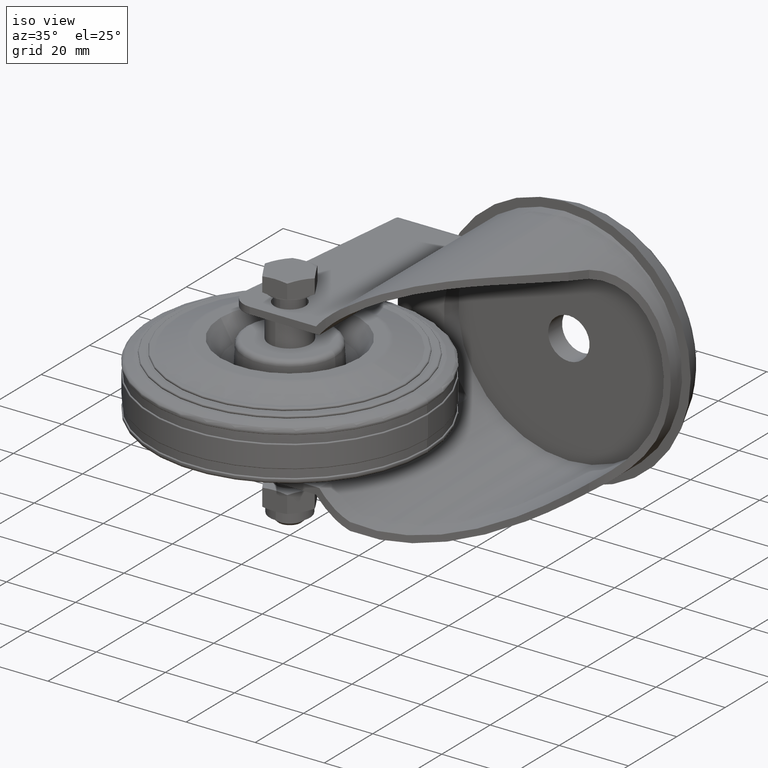
[diagram: clean part render]
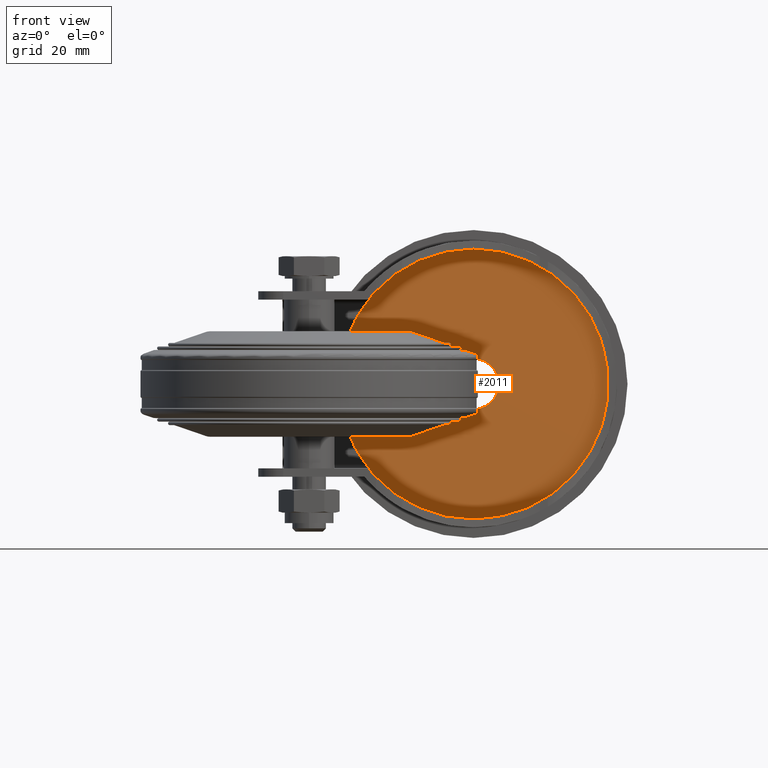
[diagram: tour spotlight — one face highlighted and labeled with its STEP entity id]
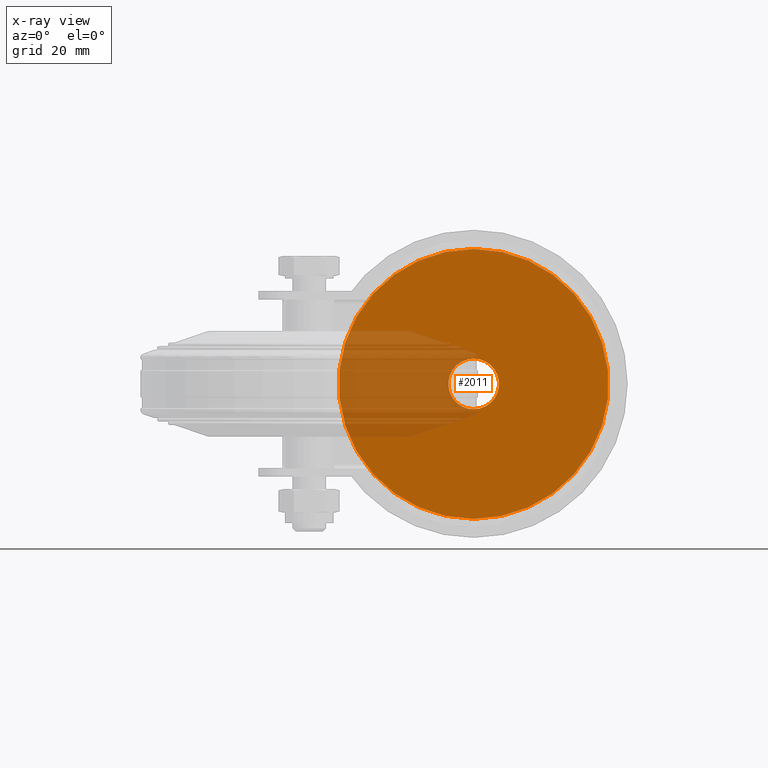
[diagram: x-ray of the same camera — body ghosted, this tour face saturated]
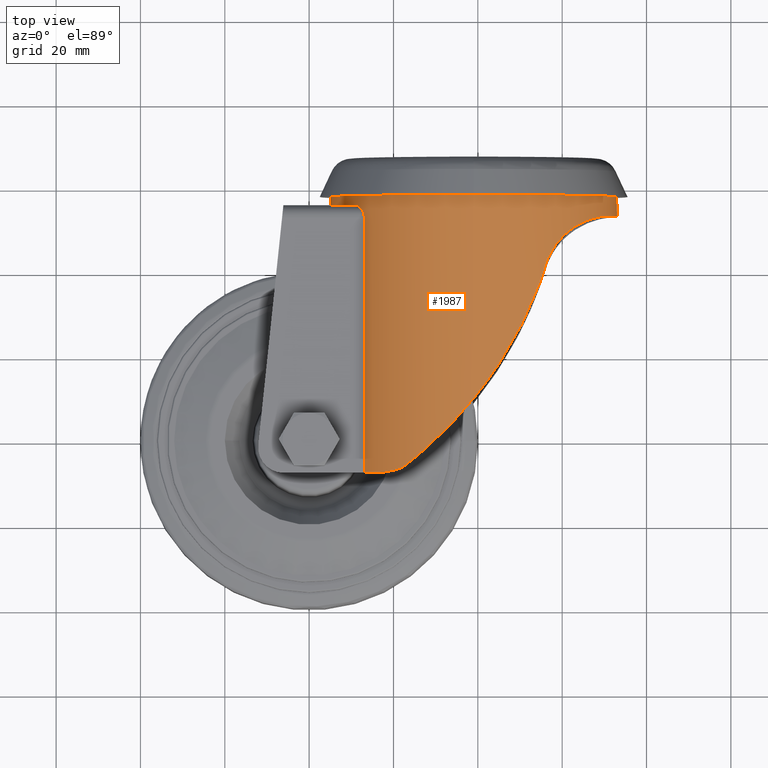
[diagram: tour spotlight — one face highlighted and labeled with its STEP entity id]
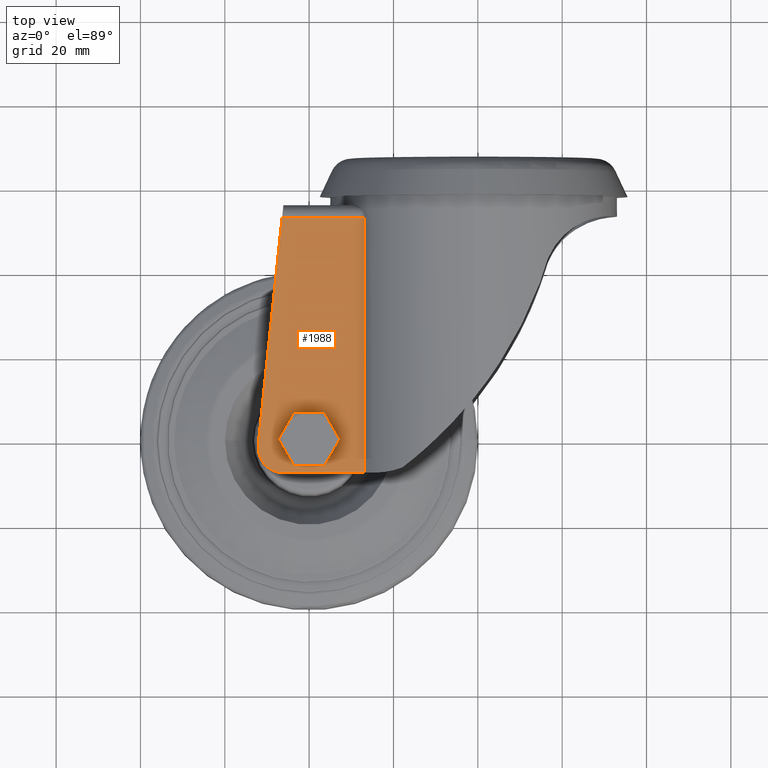
[diagram: tour spotlight — one face highlighted and labeled with its STEP entity id]
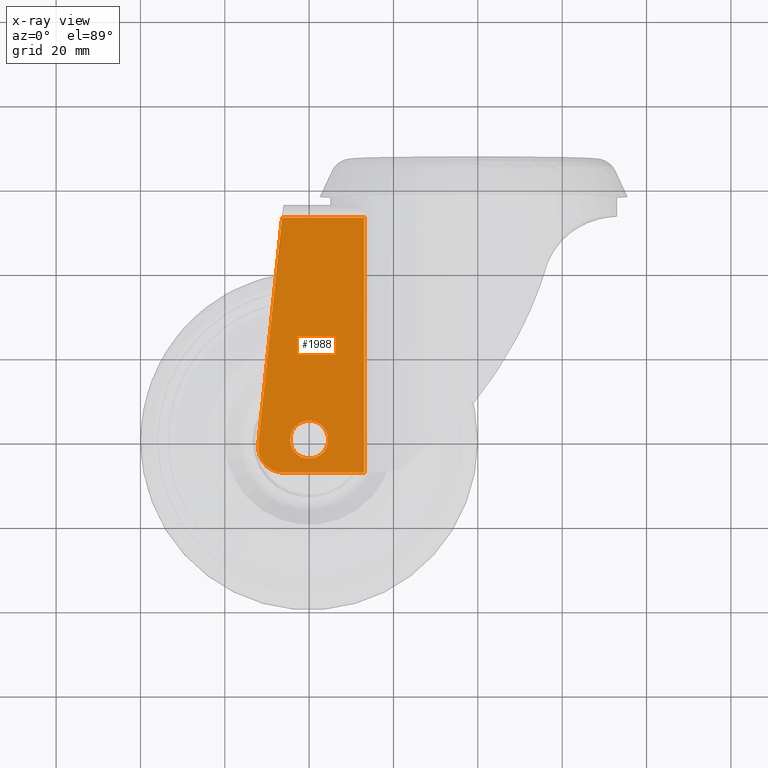
[diagram: x-ray of the same camera — body ghosted, this tour face saturated]
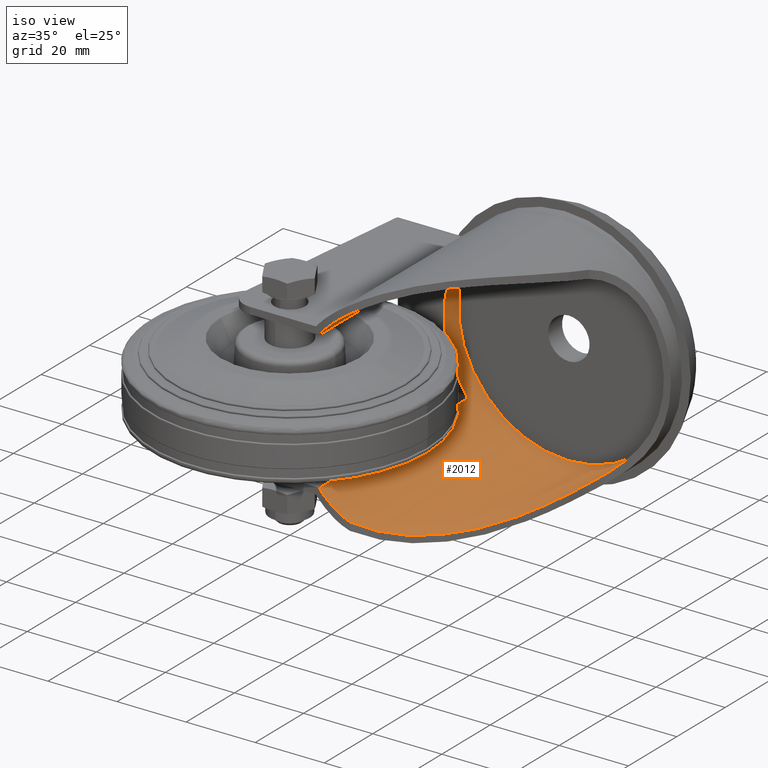
[diagram: tour spotlight — one face highlighted and labeled with its STEP entity id]
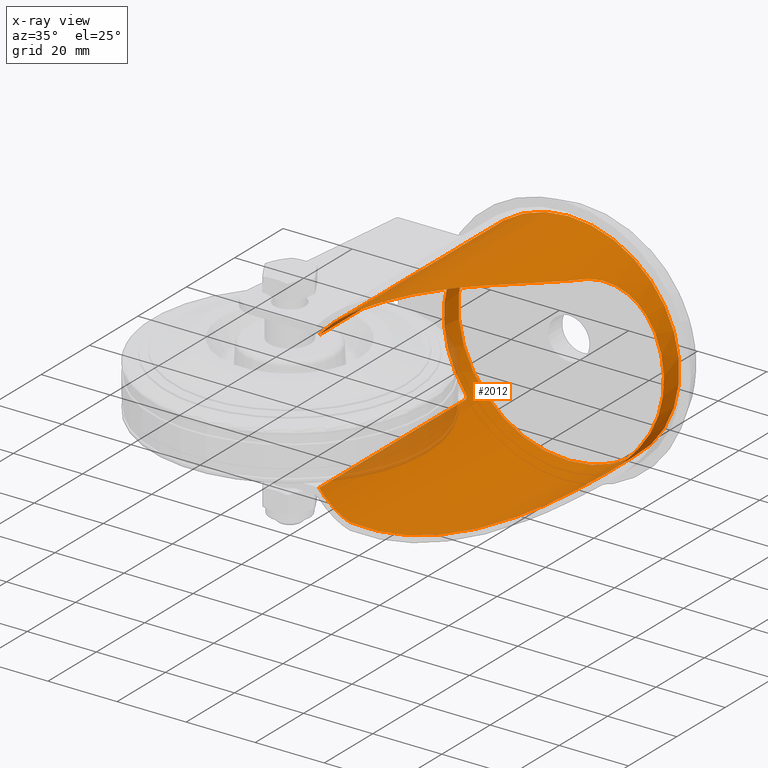
[diagram: x-ray of the same camera — body ghosted, this tour face saturated]
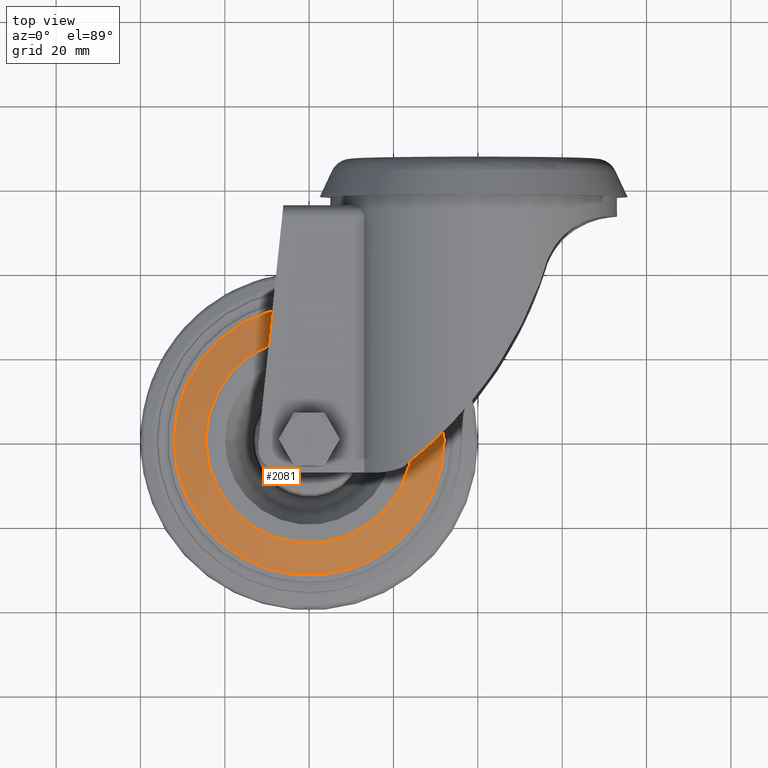
[diagram: tour spotlight — one face highlighted and labeled with its STEP entity id]
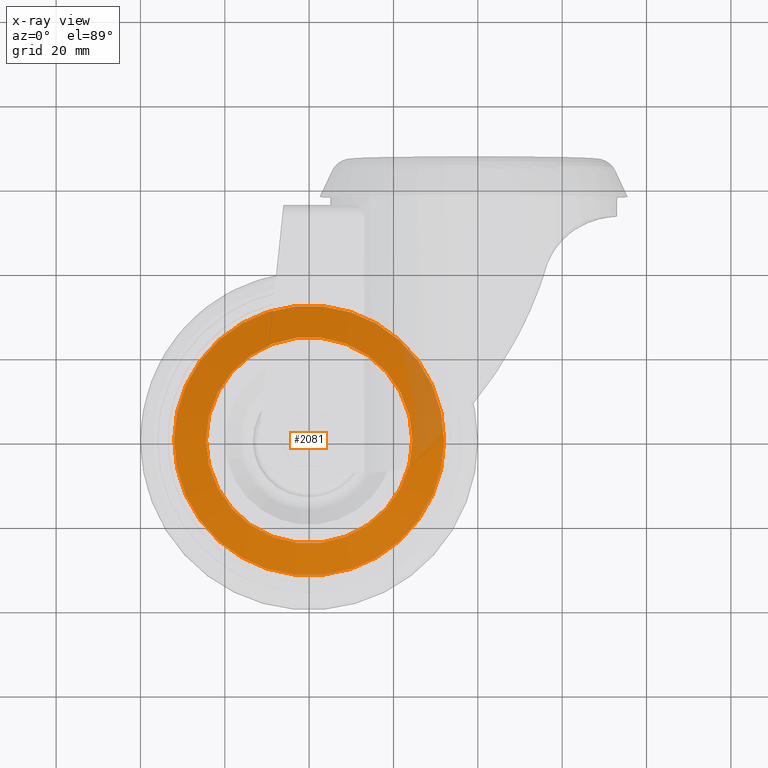
[diagram: x-ray of the same camera — body ghosted, this tour face saturated]
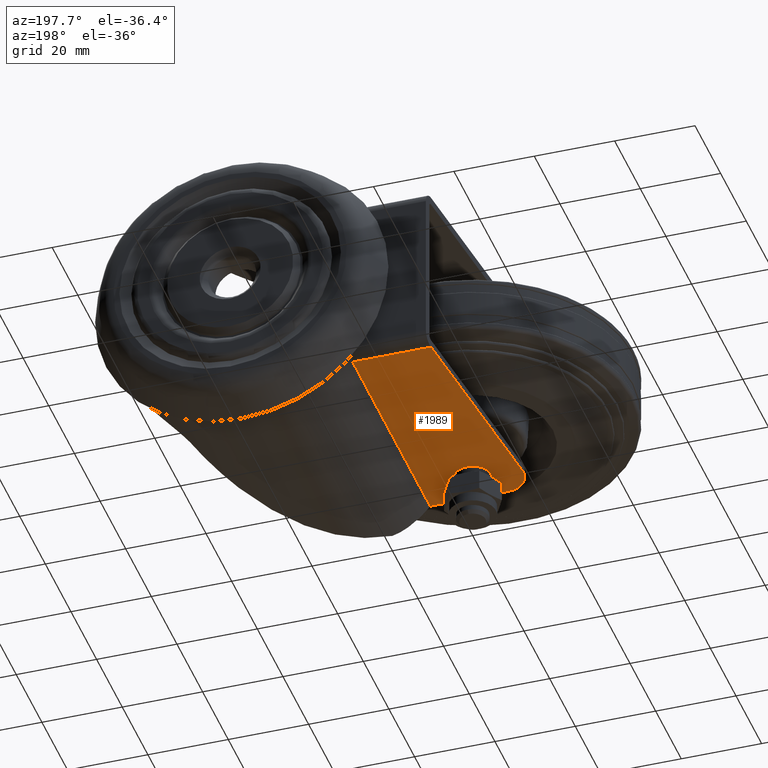
[diagram: tour spotlight — one face highlighted and labeled with its STEP entity id]
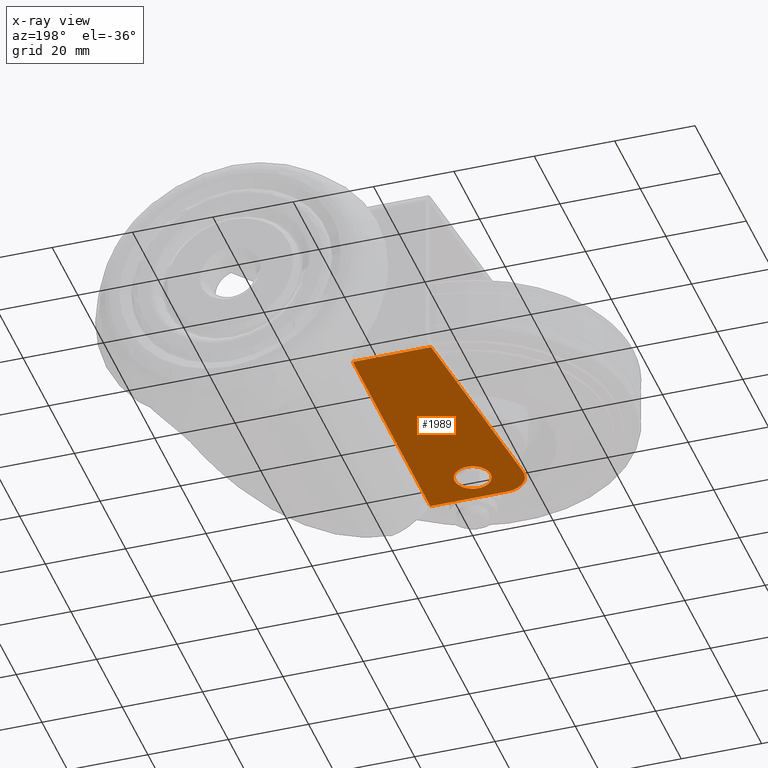
[diagram: x-ray of the same camera — body ghosted, this tour face saturated]
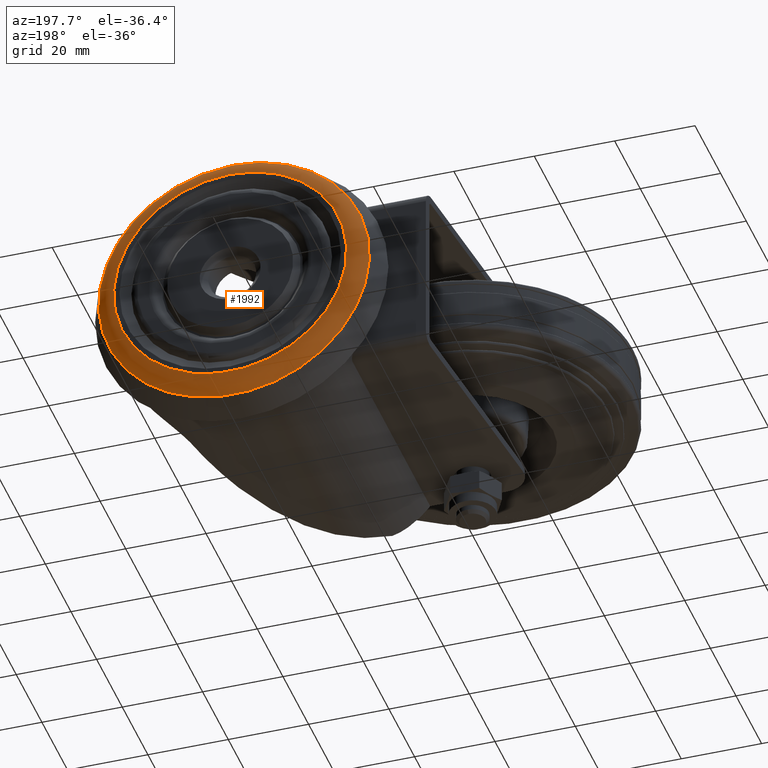
[diagram: tour spotlight — one face highlighted and labeled with its STEP entity id]
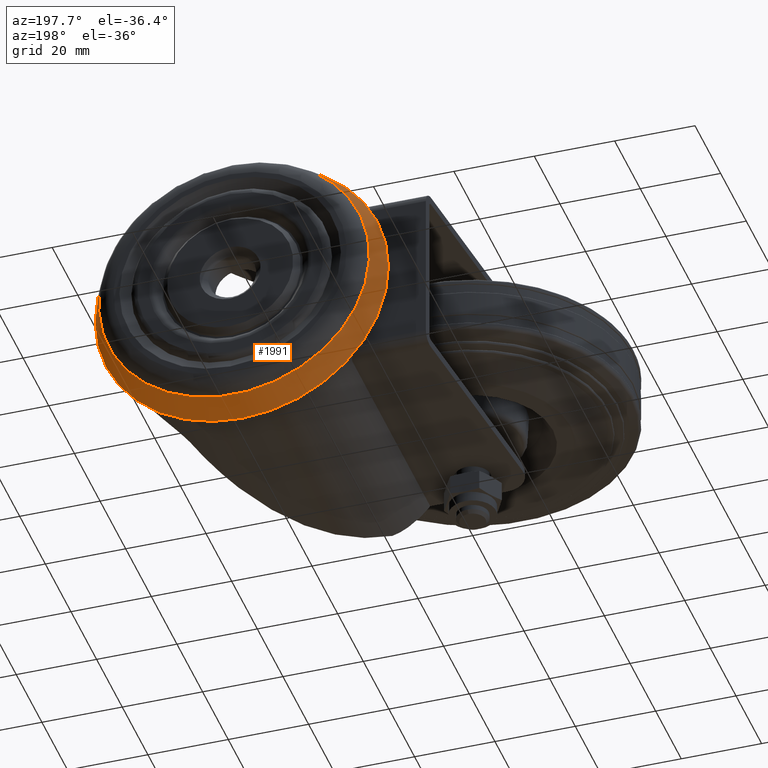
[diagram: tour spotlight — one face highlighted and labeled with its STEP entity id]
A machine part: a face-by-face anatomy tour. The part has 138 B-rep faces; the first image is the clean iso view, then the 8 largest visible faces are spotlighted one at a time (largest first), each with its STEP entity span.

Face 1 — front view, entity #2011. An x-ray twin of the same camera follows (body ghosted, this face saturated) — the face is partly hidden behind the body. In plain terms, the highlighted planar face has unit normal (0, -1, 0).
Definition (entity closure, byte-faithful):
#193=FACE_BOUND('',#447,.T.);
#301=FACE_OUTER_BOUND('',#446,.T.);
#446=EDGE_LOOP('',(#1504));
#447=EDGE_LOOP('',(#1505));
#579=CIRCLE('',#2236,6.);
#606=CIRCLE('',#2302,32.);
#881=VERTEX_POINT('',#3214);
#934=VERTEX_POINT('',#3544);
#1064=EDGE_CURVE('',#881,#881,#579,.T.);
#1143=EDGE_CURVE('',#934,#934,#606,.T.);
#1504=ORIENTED_EDGE('',*,*,#1143,.T.);
#1505=ORIENTED_EDGE('',*,*,#1064,.F.);
#1941=PLANE('',#2301);
#2011=ADVANCED_FACE('',(#301,#193),#1941,.T.);
#2236=AXIS2_PLACEMENT_3D('',#3216,#2548,#2549);
#2301=AXIS2_PLACEMENT_3D('',#3543,#2708,#2709);
#2302=AXIS2_PLACEMENT_3D('',#3545,#2710,#2711);
#2548=DIRECTION('center_axis',(0.,-1.,0.));
#2549=DIRECTION('ref_axis',(0.,0.,-1.));
#2708=DIRECTION('center_axis',(0.,-1.,0.));
#2709=DIRECTION('ref_axis',(0.,0.,-1.));
#2710=DIRECTION('center_axis',(0.,-1.,0.));
#2711=DIRECTION('ref_axis',(0.,0.,-1.));
#3214=CARTESIAN_POINT('',(39.,59.65,6.));
#3216=CARTESIAN_POINT('Origin',(39.,59.65,0.));
#3543=CARTESIAN_POINT('Origin',(39.,59.65,0.));
#3544=CARTESIAN_POINT('',(39.,59.65,32.));
#3545=CARTESIAN_POINT('Origin',(39.,59.65,0.));

Face 2 — top view, entity #1987. In plain terms, the highlighted cylindrical surface (bore or boss wall) has radius 34 mm, axis along (0, -1, 0).
Definition (entity closure, byte-faithful):
#216=ELLIPSE('',#2240,108.871621517683,34.);
#217=ELLIPSE('',#2249,108.871621517683,34.);
#224=B_SPLINE_CURVE_WITH_KNOTS('',3,(#3258,#3259,#3260,#3261,#3262,#3263,
#3264,#3265,#3266,#3267,#3268,#3269,#3270,#3271,#3272,#3273,#3274,#3275,
#3276,#3277,#3278,#3279,#3280,#3281,#3282,#3283,#3284,#3285,#3286,#3287),
 .UNSPECIFIED.,.F.,.F.,(4,2,2,2,2,2,2,2,2,2,2,2,2,2,4),(5.14690810469164,
5.18192447106104,5.52879691171211,5.87566935236318,6.65084180915183,7.42601426594049,
8.20118672272914,8.9763591795178,9.75153163630645,10.5267040930951,11.3018765498838,
12.0770490066724,12.4239214473235,12.7707938879746,12.805810254344),
 .UNSPECIFIED.);
#226=B_SPLINE_CURVE_WITH_KNOTS('',3,(#3312,#3313,#3314,#3315,#3316,#3317,
#3318,#3319,#3320,#3321,#3322,#3323,#3324,#3325,#3326,#3327),
 .UNSPECIFIED.,.F.,.F.,(4,2,2,2,2,2,2,4),(28.3079638445088,28.3761040241941,
28.9318086804919,29.4875133367896,30.0432179930873,30.5989226493851,32.2143153920236,
33.6934155860593),.UNSPECIFIED.);
#228=B_SPLINE_CURVE_WITH_KNOTS('',3,(#3342,#3343,#3344,#3345,#3346,#3347,
#3348,#3349),.UNSPECIFIED.,.F.,.F.,(4,2,2,4),(15.7205759071929,17.1996761012286,
18.8150688438671,18.8197189631016),.UNSPECIFIED.);
#229=B_SPLINE_CURVE_WITH_KNOTS('',3,(#3351,#3352,#3353,#3354,#3355,#3356,
#3357,#3358,#3359,#3360,#3361,#3362),.UNSPECIFIED.,.F.,.F.,(4,2,2,2,2,4),
(18.8197189631016,19.3707735001649,19.9264781564626,20.4821828127604,21.0378874690581,
21.1060276487434),.UNSPECIFIED.);
#232=B_SPLINE_CURVE_WITH_KNOTS('',3,(#3387,#3388,#3389,#3390,#3391,#3392),
 .UNSPECIFIED.,.F.,.F.,(4,2,4),(13.9661329861949,14.3714929288147,14.7061180477156),
 .UNSPECIFIED.);
#234=B_SPLINE_CURVE_WITH_KNOTS('',3,(#3402,#3403,#3404,#3405,#3406,#3407),
 .UNSPECIFIED.,.F.,.F.,(4,2,4),(7.75786208255806,8.09248720145889,8.49784714407875),
 .UNSPECIFIED.);
#235=B_SPLINE_CURVE_WITH_KNOTS('',3,(#3414,#3415,#3416,#3417,#3418,#3419,
#3420,#3421,#3422,#3423),.UNSPECIFIED.,.F.,.F.,(4,2,2,2,4),(0.491789925214169,
0.63388258345553,0.775975241696891,0.888881589157005,1.00178793661712),
 .UNSPECIFIED.);
#236=B_SPLINE_CURVE_WITH_KNOTS('',3,(#3427,#3428,#3429,#3430,#3431,#3432,
#3433,#3434,#3435,#3436),.UNSPECIFIED.,.F.,.F.,(4,2,2,2,4),(0.,0.112906347460113,
0.225812694920225,0.367905353161586,0.509998011402946),.UNSPECIFIED.);
#246=CYLINDRICAL_SURFACE('',#2245,34.);
#277=FACE_OUTER_BOUND('',#415,.T.);
#415=EDGE_LOOP('',(#1385,#1386,#1387,#1388,#1389,#1390,#1391,#1392,#1393,
#1394,#1395,#1396,#1397,#1398,#1399,#1400,#1401,#1402));
#574=CIRCLE('',#2229,34.);
#580=CIRCLE('',#2246,34.);
#581=CIRCLE('',#2247,34.);
#582=CIRCLE('',#2248,34.);
#728=LINE('',#3412,#806);
#729=LINE('',#3437,#807);
#730=LINE('',#3439,#808);
#806=VECTOR('',#2577,1000.);
#807=VECTOR('',#2580,1000.);
#808=VECTOR('',#2581,34.);
#875=VERTEX_POINT('',#3198);
#876=VERTEX_POINT('',#3200);
#882=VERTEX_POINT('',#3218);
#885=VERTEX_POINT('',#3256);
#887=VERTEX_POINT('',#3291);
#889=VERTEX_POINT('',#3310);
#892=VERTEX_POINT('',#3339);
#893=VERTEX_POINT('',#3341);
#894=VERTEX_POINT('',#3350);
#897=VERTEX_POINT('',#3385);
#898=VERTEX_POINT('',#3409);
#899=VERTEX_POINT('',#3411);
#900=VERTEX_POINT('',#3413);
#901=VERTEX_POINT('',#3424);
#902=VERTEX_POINT('',#3426);
#903=VERTEX_POINT('',#3438);
#1056=EDGE_CURVE('',#875,#876,#574,.F.);
#1068=EDGE_CURVE('',#882,#885,#224,.T.);
#1071=EDGE_CURVE('',#887,#885,#216,.F.);
#1074=EDGE_CURVE('',#889,#887,#226,.T.);
#1077=EDGE_CURVE('',#892,#893,#228,.T.);
#1078=EDGE_CURVE('',#893,#894,#229,.T.);
#1083=EDGE_CURVE('',#897,#889,#232,.T.);
#1085=EDGE_CURVE('',#894,#875,#234,.T.);
#1086=EDGE_CURVE('',#898,#897,#580,.F.);
#1087=EDGE_CURVE('',#899,#898,#728,.T.);
#1088=EDGE_CURVE('',#900,#899,#235,.T.);
#1089=EDGE_CURVE('',#901,#900,#581,.F.);
#1090=EDGE_CURVE('',#902,#901,#236,.T.);
#1091=EDGE_CURVE('',#876,#902,#729,.F.);
#1092=EDGE_CURVE('',#893,#903,#730,.T.);
#1093=EDGE_CURVE('',#903,#903,#582,.T.);
#1094=EDGE_CURVE('',#882,#892,#217,.F.);
#1385=ORIENTED_EDGE('',*,*,#1086,.F.);
#1386=ORIENTED_EDGE('',*,*,#1087,.F.);
#1387=ORIENTED_EDGE('',*,*,#1088,.F.);
#1388=ORIENTED_EDGE('',*,*,#1089,.F.);
#1389=ORIENTED_EDGE('',*,*,#1090,.F.);
#1390=ORIENTED_EDGE('',*,*,#1091,.F.);
#1391=ORIENTED_EDGE('',*,*,#1056,.F.);
#1392=ORIENTED_EDGE('',*,*,#1085,.F.);
#1393=ORIENTED_EDGE('',*,*,#1078,.F.);
#1394=ORIENTED_EDGE('',*,*,#1092,.T.);
#1395=ORIENTED_EDGE('',*,*,#1093,.T.);
#1396=ORIENTED_EDGE('',*,*,#1092,.F.);
#1397=ORIENTED_EDGE('',*,*,#1077,.F.);
#1398=ORIENTED_EDGE('',*,*,#1094,.F.);
#1399=ORIENTED_EDGE('',*,*,#1068,.T.);
#1400=ORIENTED_EDGE('',*,*,#1071,.F.);
#1401=ORIENTED_EDGE('',*,*,#1074,.F.);
#1402=ORIENTED_EDGE('',*,*,#1083,.F.);
#1987=ADVANCED_FACE('',(#277),#246,.T.);
#2229=AXIS2_PLACEMENT_3D('',#3201,#2531,#2532);
#2240=AXIS2_PLACEMENT_3D('',#3293,#2559,#2560);
#2245=AXIS2_PLACEMENT_3D('',#3408,#2573,#2574);
#2246=AXIS2_PLACEMENT_3D('',#3410,#2575,#2576);
#2247=AXIS2_PLACEMENT_3D('',#3425,#2578,#2579);
#2248=AXIS2_PLACEMENT_3D('',#3440,#2582,#2583);
#2249=AXIS2_PLACEMENT_3D('',#3441,#2584,#2585);
#2531=DIRECTION('center_axis',(0.,1.,0.));
#2532=DIRECTION('ref_axis',(0.,0.,1.));
#2559=DIRECTION('center_axis',(-0.949985365488376,0.312294420952274,0.));
#2560=DIRECTION('ref_axis',(-0.312294420952274,-0.949985365488376,0.));
#2573=DIRECTION('center_axis',(0.,-1.,0.));
#2574=DIRECTION('ref_axis',(0.,0.,-1.));
#2575=DIRECTION('center_axis',(0.,1.,0.));
#2576=DIRECTION('ref_axis',(0.,0.,1.));
#2577=DIRECTION('',(0.,-1.,0.));
#2578=DIRECTION('center_axis',(0.,1.,0.));
#2579=DIRECTION('ref_axis',(0.,0.,1.));
#2580=DIRECTION('',(0.,-1.,0.));
#2581=DIRECTION('',(0.,1.,0.));
#2582=DIRECTION('center_axis',(0.,-1.,0.));
#2583=DIRECTION('ref_axis',(0.,0.,-1.));
#2584=DIRECTION('center_axis',(-0.949985365488376,0.312294420952274,0.));
#2585=DIRECTION('ref_axis',(-0.312294420952274,-0.949985365488376,0.));
#3198=CARTESIAN_POINT('',(15.8449597498061,-7.85000000000001,24.8966686729751));
#3200=CARTESIAN_POINT('',(13.0770372063686,-7.85000000000001,22.));
#3201=CARTESIAN_POINT('Origin',(39.,-7.85000000000001,0.));
#3218=CARTESIAN_POINT('',(56.608,42.836,29.0853629167662));
#3256=CARTESIAN_POINT('',(56.608,42.836,-29.0853629167662));
#3258=CARTESIAN_POINT('Ctrl Pts',(56.608,42.836,29.0853629167662));
#3259=CARTESIAN_POINT('Ctrl Pts',(56.6538039703118,42.9456124426797,29.0576336320549));
#3260=CARTESIAN_POINT('Ctrl Pts',(56.7006885684977,43.0545812453651,29.0291022211461));
#3261=CARTESIAN_POINT('Ctrl Pts',(57.2234654363049,44.2355134744479,28.7091502372834));
#3262=CARTESIAN_POINT('Ctrl Pts',(57.8044490829853,45.2426395109095,28.337481482712));
#3263=CARTESIAN_POINT('Ctrl Pts',(59.0962787667117,47.0549835807893,27.4364673891745));
#3264=CARTESIAN_POINT('Ctrl Pts',(59.8066008947765,47.8601488934762,26.9062651308872));
#3265=CARTESIAN_POINT('Ctrl Pts',(62.1310115529075,50.0898975878427,25.0051982415943));
#3266=CARTESIAN_POINT('Ctrl Pts',(63.7963834442257,51.101213952703,23.3884654981277));
#3267=CARTESIAN_POINT('Ctrl Pts',(66.864868037166,52.4788827256566,19.6323735501013));
#3268=CARTESIAN_POINT('Ctrl Pts',(68.2697355220934,52.8399188470975,17.4925000730108));
#3269=CARTESIAN_POINT('Ctrl Pts',(70.5812040591428,53.2355646206251,12.8581696408645));
#3270=CARTESIAN_POINT('Ctrl Pts',(71.4905383310218,53.2732193047315,10.3599285104194));
#3271=CARTESIAN_POINT('Ctrl Pts',(72.6999351743889,53.2873311016539,5.22279323931134));
#3272=CARTESIAN_POINT('Ctrl Pts',(73.,53.2667490106642,2.58390818929552));
#3273=CARTESIAN_POINT('Ctrl Pts',(73.,53.2667490106642,-2.58390818929551));
#3274=CARTESIAN_POINT('Ctrl Pts',(72.6999351743889,53.2873311016539,-5.22279323931133));
#3275=CARTESIAN_POINT('Ctrl Pts',(71.4905383310218,53.2732193047315,-10.3599285104194));
#3276=CARTESIAN_POINT('Ctrl Pts',(70.5812040591428,53.2355646206251,-12.8581696408645));
#3277=CARTESIAN_POINT('Ctrl Pts',(68.2697355220934,52.8399188470975,-17.4925000730108));
#3278=CARTESIAN_POINT('Ctrl Pts',(66.864868037166,52.4788827256566,-19.6323735501013));
#3279=CARTESIAN_POINT('Ctrl Pts',(63.7963834442257,51.101213952703,-23.3884654981277));
#3280=CARTESIAN_POINT('Ctrl Pts',(62.1310115529075,50.0898975878427,-25.0051982415943));
#3281=CARTESIAN_POINT('Ctrl Pts',(59.8066008947765,47.8601488934762,-26.9062651308872));
#3282=CARTESIAN_POINT('Ctrl Pts',(59.0962787667117,47.0549835807893,-27.4364673891745));
#3283=CARTESIAN_POINT('Ctrl Pts',(57.8044490829853,45.2426395109095,-28.337481482712));
#3284=CARTESIAN_POINT('Ctrl Pts',(57.2234654363049,44.2355134744479,-28.7091502372834));
#3285=CARTESIAN_POINT('Ctrl Pts',(56.7006885684977,43.0545812453651,-29.0291022211461));
#3286=CARTESIAN_POINT('Ctrl Pts',(56.6538039703118,42.9456124426797,-29.0576336320549));
#3287=CARTESIAN_POINT('Ctrl Pts',(56.608,42.836,-29.0853629167662));
#3291=CARTESIAN_POINT('',(54.7249999999999,37.1079999999998,-30.1450555647191));
#3293=CARTESIAN_POINT('Origin',(39.,-10.7267318109397,0.));
#3310=CARTESIAN_POINT('',(22.1060000000001,-6.72600000000006,-29.5058089873842));
#3312=CARTESIAN_POINT('Ctrl Pts',(22.1060000000001,-6.72600000000009,-29.5058089873842));
#3313=CARTESIAN_POINT('Ctrl Pts',(22.2742165995112,-6.59890269043125,-29.6021239616103));
#3314=CARTESIAN_POINT('Ctrl Pts',(22.441088141002,-6.47196359100118,-29.6957575492268));
#3315=CARTESIAN_POINT('Ctrl Pts',(23.9539870845531,-5.31348344149757,-30.5284094510538));
#3316=CARTESIAN_POINT('Ctrl Pts',(25.3690959630271,-4.17315689749539,-31.1858701133169));
#3317=CARTESIAN_POINT('Ctrl Pts',(28.2370763960878,-1.71345940066644,-32.2880707839268));
#3318=CARTESIAN_POINT('Ctrl Pts',(29.689694003885,-0.393971357091997,-32.7332102178782));
#3319=CARTESIAN_POINT('Ctrl Pts',(32.5388782854763,2.36180929929455,-33.4125535767));
#3320=CARTESIAN_POINT('Ctrl Pts',(33.9362241212416,3.79896815380435,-33.6474470831065));
#3321=CARTESIAN_POINT('Ctrl Pts',(36.5977370193098,6.7081767456909,-33.9414444875444));
#3322=CARTESIAN_POINT('Ctrl Pts',(37.8619168351489,8.18016973484354,-34.0009943016357));
#3323=CARTESIAN_POINT('Ctrl Pts',(42.4229016622318,13.7990170754972,-33.9970602236586));
#3324=CARTESIAN_POINT('Ctrl Pts',(45.5419842299618,18.356898634148,-33.4849070407122));
#3325=CARTESIAN_POINT('Ctrl Pts',(50.7668482087623,27.6279314993504,-32.0043582066109));
#3326=CARTESIAN_POINT('Ctrl Pts',(52.9367763064579,32.2951336122901,-31.0778724746292));
#3327=CARTESIAN_POINT('Ctrl Pts',(54.7249999999999,37.1079999999998,-30.1450555647191));
#3339=CARTESIAN_POINT('',(54.7249999999999,37.1079999999998,30.1450555647191));
#3341=CARTESIAN_POINT('',(39.,9.5822344469711,34.));
#3342=CARTESIAN_POINT('Ctrl Pts',(54.7249999999999,37.1079999999998,30.1450555647191));
#3343=CARTESIAN_POINT('Ctrl Pts',(52.9367763064579,32.2951336122901,31.0778724746292));
#3344=CARTESIAN_POINT('Ctrl Pts',(50.7668482087623,27.6279314993504,32.0043582066109));
#3345=CARTESIAN_POINT('Ctrl Pts',(45.5419842299618,18.356898634148,33.4849070407122));
#3346=CARTESIAN_POINT('Ctrl Pts',(42.4229016622318,13.7990170754971,33.9970602236586));
#3347=CARTESIAN_POINT('Ctrl Pts',(39.0195578436418,9.60631087510295,33.9999957782533));
#3348=CARTESIAN_POINT('Ctrl Pts',(39.0097822743508,9.59427385170383,34.));
#3349=CARTESIAN_POINT('Ctrl Pts',(39.,9.5822344469711,34.));
#3350=CARTESIAN_POINT('',(22.1060000000001,-6.72600000000006,29.5058089873842));
#3351=CARTESIAN_POINT('Ctrl Pts',(39.,9.58223444697109,34.));
#3352=CARTESIAN_POINT('Ctrl Pts',(37.8407680766805,8.15552509458133,34.));
#3353=CARTESIAN_POINT('Ctrl Pts',(36.5866012908435,6.69600466230377,33.9402144069883));
#3354=CARTESIAN_POINT('Ctrl Pts',(33.9362241212416,3.79896815380435,33.6474470831065));
#3355=CARTESIAN_POINT('Ctrl Pts',(32.5388782854763,2.36180929929455,33.4125535767));
#3356=CARTESIAN_POINT('Ctrl Pts',(29.689694003885,-0.393971357091996,32.7332102178782));
#3357=CARTESIAN_POINT('Ctrl Pts',(28.2370763960878,-1.71345940066644,32.2880707839268));
#3358=CARTESIAN_POINT('Ctrl Pts',(25.3690959630271,-4.17315689749539,31.1858701133169));
#3359=CARTESIAN_POINT('Ctrl Pts',(23.9539870845531,-5.31348344149757,30.5284094510538));
#3360=CARTESIAN_POINT('Ctrl Pts',(22.441088141002,-6.47196359100117,29.6957575492268));
#3361=CARTESIAN_POINT('Ctrl Pts',(22.2742165995112,-6.59890269043125,29.6021239616103));
#3362=CARTESIAN_POINT('Ctrl Pts',(22.1060000000001,-6.72600000000009,29.5058089873842));
#3385=CARTESIAN_POINT('',(15.8449597498061,-7.85000000000001,-24.8966686729751));
#3387=CARTESIAN_POINT('Ctrl Pts',(15.8449597498061,-7.8500000000001,-24.8966686729751));
#3388=CARTESIAN_POINT('Ctrl Pts',(16.8728089423175,-7.85000000462662,-25.8526154197607));
#3389=CARTESIAN_POINT('Ctrl Pts',(18.0088134171264,-7.7592100086721,-26.7852591394045));
#3390=CARTESIAN_POINT('Ctrl Pts',(20.1480259799564,-7.35579034310953,-28.3199664870929));
#3391=CARTESIAN_POINT('Ctrl Pts',(21.1403123582315,-7.08427264256872,-28.9528898307865));
#3392=CARTESIAN_POINT('Ctrl Pts',(22.1060000000001,-6.72600000000015,-29.5058089873842));
#3402=CARTESIAN_POINT('Ctrl Pts',(22.1060000000001,-6.72600000000015,29.5058089873842));
#3403=CARTESIAN_POINT('Ctrl Pts',(21.1403123582315,-7.08427264256871,28.9528898307865));
#3404=CARTESIAN_POINT('Ctrl Pts',(20.1480259799564,-7.35579034310953,28.3199664870929));
#3405=CARTESIAN_POINT('Ctrl Pts',(18.0088134171264,-7.7592100086721,26.7852591394045));
#3406=CARTESIAN_POINT('Ctrl Pts',(16.8728089423175,-7.85000000462662,25.8526154197607));
#3407=CARTESIAN_POINT('Ctrl Pts',(15.8449597498061,-7.8500000000001,24.8966686729751));
#3408=CARTESIAN_POINT('Origin',(39.,-20.,0.));
#3409=CARTESIAN_POINT('',(13.0770372063686,-7.85000000000001,-22.));
#3410=CARTESIAN_POINT('Origin',(39.,-7.85000000000001,0.));
#3411=CARTESIAN_POINT('',(13.0770372063686,52.65,-22.));
#3412=CARTESIAN_POINT('',(13.0770372063686,-20.,-22.));
#3413=CARTESIAN_POINT('',(10.8042556402566,55.65,-19.));
#3414=CARTESIAN_POINT('Ctrl Pts',(10.8042556402566,55.65,-19.));
#3415=CARTESIAN_POINT('Ctrl Pts',(11.0689380428631,55.65,-19.3927851242323));
#3416=CARTESIAN_POINT('Ctrl Pts',(11.3625582929166,55.5690737089685,-19.8090939986807));
#3417=CARTESIAN_POINT('Ctrl Pts',(11.9302362301695,55.2356086303939,-20.5780533245299));
#3418=CARTESIAN_POINT('Ctrl Pts',(12.2040708656349,54.9834401719516,-20.9310289429521));
#3419=CARTESIAN_POINT('Ctrl Pts',(12.607440596041,54.4316312002053,-21.4362952934496));
#3420=CARTESIAN_POINT('Ctrl Pts',(12.7772497730508,54.1196912428252,-21.6425770444425));
#3421=CARTESIAN_POINT('Ctrl Pts',(13.0127288677773,53.4174172486606,-21.9247693249981));
#3422=CARTESIAN_POINT('Ctrl Pts',(13.0770372063686,53.0263544915337,-22.));
#3423=CARTESIAN_POINT('Ctrl Pts',(13.0770372063686,52.65,-22.));
#3424=CARTESIAN_POINT('',(10.8042556402566,55.65,19.));
#3425=CARTESIAN_POINT('Origin',(39.,55.65,0.));
#3426=CARTESIAN_POINT('',(13.0770372063685,52.65,22.));
#3427=CARTESIAN_POINT('Ctrl Pts',(13.0770372063685,52.65,22.));
#3428=CARTESIAN_POINT('Ctrl Pts',(13.0770372063685,53.0263544915337,22.));
#3429=CARTESIAN_POINT('Ctrl Pts',(13.0127288677773,53.4174172486605,21.9247693249981));
#3430=CARTESIAN_POINT('Ctrl Pts',(12.7772497730508,54.1196912428251,21.6425770444425));
#3431=CARTESIAN_POINT('Ctrl Pts',(12.607440596041,54.4316312002053,21.4362952934496));
#3432=CARTESIAN_POINT('Ctrl Pts',(12.2040708656349,54.9834401719516,20.9310289429521));
#3433=CARTESIAN_POINT('Ctrl Pts',(11.9302362301695,55.2356086303939,20.5780533245299));
#3434=CARTESIAN_POINT('Ctrl Pts',(11.3625582929166,55.5690737089685,19.8090939986807));
#3435=CARTESIAN_POINT('Ctrl Pts',(11.0689380428631,55.65,19.3927851242323));
#3436=CARTESIAN_POINT('Ctrl Pts',(10.8042556402566,55.65,19.));
#3437=CARTESIAN_POINT('',(13.0770372063686,-20.,22.));
#3438=CARTESIAN_POINT('',(39.,57.9277378268544,34.));
#3439=CARTESIAN_POINT('',(39.,-20.,34.));
#3440=CARTESIAN_POINT('Origin',(39.,57.9277378268544,0.));
#3441=CARTESIAN_POINT('Origin',(39.,-10.7267318109397,0.));

Face 3 — top view, entity #1988. An x-ray twin of the same camera follows (body ghosted, this face saturated) — the face is partly hidden behind the body. In plain terms, the highlighted planar face has unit normal (0, 0, 1).
Definition (entity closure, byte-faithful):
#186=FACE_BOUND('',#417,.T.);
#278=FACE_OUTER_BOUND('',#416,.T.);
#416=EDGE_LOOP('',(#1403,#1404,#1405,#1406,#1407));
#417=EDGE_LOOP('',(#1408));
#576=CIRCLE('',#2232,6.);
#583=CIRCLE('',#2251,4.5);
#718=LINE('',#3202,#796);
#729=LINE('',#3437,#807);
#731=LINE('',#3444,#809);
#732=LINE('',#3445,#810);
#796=VECTOR('',#2533,1000.);
#807=VECTOR('',#2580,1000.);
#809=VECTOR('',#2588,1000.);
#810=VECTOR('',#2589,1000.);
#871=VERTEX_POINT('',#3191);
#876=VERTEX_POINT('',#3200);
#877=VERTEX_POINT('',#3204);
#902=VERTEX_POINT('',#3426);
#904=VERTEX_POINT('',#3443);
#905=VERTEX_POINT('',#3446);
#1057=EDGE_CURVE('',#876,#871,#718,.T.);
#1060=EDGE_CURVE('',#871,#877,#576,.F.);
#1091=EDGE_CURVE('',#876,#902,#729,.F.);
#1095=EDGE_CURVE('',#877,#904,#731,.T.);
#1096=EDGE_CURVE('',#904,#902,#732,.T.);
#1097=EDGE_CURVE('',#905,#905,#583,.F.);
#1403=ORIENTED_EDGE('',*,*,#1095,.F.);
#1404=ORIENTED_EDGE('',*,*,#1060,.F.);
#1405=ORIENTED_EDGE('',*,*,#1057,.F.);
#1406=ORIENTED_EDGE('',*,*,#1091,.T.);
#1407=ORIENTED_EDGE('',*,*,#1096,.F.);
#1408=ORIENTED_EDGE('',*,*,#1097,.T.);
#1930=PLANE('',#2250);
#1988=ADVANCED_FACE('',(#278,#186),#1930,.T.);
#2232=AXIS2_PLACEMENT_3D('',#3208,#2539,#2540);
#2250=AXIS2_PLACEMENT_3D('',#3442,#2586,#2587);
#2251=AXIS2_PLACEMENT_3D('',#3447,#2590,#2591);
#2533=DIRECTION('',(-1.,0.,0.));
#2539=DIRECTION('center_axis',(0.,0.,1.));
#2540=DIRECTION('ref_axis',(1.,0.,0.));
#2580=DIRECTION('',(0.,-1.,0.));
#2586=DIRECTION('center_axis',(0.,0.,1.));
#2587=DIRECTION('ref_axis',(1.,0.,0.));
#2588=DIRECTION('',(0.104537317607529,0.994520964699801,0.));
#2589=DIRECTION('',(1.,0.,0.));
#2590=DIRECTION('center_axis',(0.,0.,1.));
#2591=DIRECTION('ref_axis',(1.,0.,0.));
#3191=CARTESIAN_POINT('',(-6.11595584063631,-7.85000000000001,22.));
#3200=CARTESIAN_POINT('',(13.0770372063686,-7.85000000000001,22.));
#3202=CARTESIAN_POINT('',(-24.,-7.85000000000001,22.));
#3204=CARTESIAN_POINT('',(-12.0830815783644,-1.22277609982297,22.));
#3208=CARTESIAN_POINT('Origin',(-6.11595578959084,-1.85000000000001,22.));
#3426=CARTESIAN_POINT('',(13.0770372063685,52.65,22.));
#3437=CARTESIAN_POINT('',(13.0770372063686,-20.,22.));
#3442=CARTESIAN_POINT('Origin',(-24.,52.65,22.));
#3443=CARTESIAN_POINT('',(-6.42033971022648,52.65,22.));
#3444=CARTESIAN_POINT('',(-6.61245113043778,50.8223384593079,22.));
#3445=CARTESIAN_POINT('',(-24.,52.65,22.));
#3446=CARTESIAN_POINT('',(4.5,0.,22.));
#3447=CARTESIAN_POINT('Origin',(0.,0.,22.));

Face 4 — iso view, entity #2012. An x-ray twin of the same camera follows (body ghosted, this face saturated) — the face is partly hidden behind the body. In plain terms, the highlighted cylindrical surface (bore or boss wall) has radius 32 mm, axis along (0, -1, 0).
Definition (entity closure, byte-faithful):
#215=ELLIPSE('',#2239,102.467408487231,32.);
#222=ELLIPSE('',#2296,102.467408487231,32.);
#223=B_SPLINE_CURVE_WITH_KNOTS('',3,(#3222,#3223,#3224,#3225,#3226,#3227,
#3228,#3229,#3230,#3231,#3232,#3233,#3234,#3235,#3236,#3237,#3238,#3239,
#3240,#3241,#3242,#3243,#3244,#3245,#3246,#3247,#3248,#3249,#3250,#3251,
#3252,#3253,#3254,#3255),.UNSPECIFIED.,.F.,.F.,(4,2,2,2,2,2,2,2,2,2,2,2,
2,2,2,2,4),(4.66821806619311,4.86286276280568,5.14471182926958,5.53105956458887,
5.91740729990816,6.4467132566381,6.97601921336803,7.50532517009797,8.03463112682791,
8.56393708355785,9.09324304028779,9.62254899701772,10.1518549537477,10.5382026890669,
10.9245504243862,11.2063994908501,11.4010441874627),.UNSPECIFIED.);
#225=B_SPLINE_CURVE_WITH_KNOTS('',3,(#3296,#3297,#3298,#3299,#3300,#3301,
#3302,#3303,#3304,#3305,#3306,#3307,#3308,#3309),.UNSPECIFIED.,.F.,.F.,
(4,2,2,2,2,2,4),(27.3636669188044,27.5835004126404,28.121376960085,28.6592535075296,
29.7350066024187,31.3364067643776,32.7651456571906),.UNSPECIFIED.);
#227=B_SPLINE_CURVE_WITH_KNOTS('',3,(#3331,#3332,#3333,#3334,#3335,#3336,
#3337,#3338),.UNSPECIFIED.,.F.,.F.,(4,2,2,4),(15.4223306764817,16.8510695692948,
18.4524697312536,18.5300937925108),.UNSPECIFIED.);
#230=B_SPLINE_CURVE_WITH_KNOTS('',3,(#3365,#3366,#3367,#3368,#3369,#3370,
#3371,#3372,#3373,#3374),.UNSPECIFIED.,.F.,.F.,(4,2,2,2,4),(18.5300937925108,
19.5282228261428,20.0660993735873,20.6039759210319,20.823809414868),
 .UNSPECIFIED.);
#231=B_SPLINE_CURVE_WITH_KNOTS('',3,(#3377,#3378,#3379,#3380,#3381,#3382,
#3383,#3384),.UNSPECIFIED.,.F.,.F.,(4,2,2,4),(12.9570328224753,13.0616211601019,
13.5661046787852,13.7353684334015),.UNSPECIFIED.);
#233=B_SPLINE_CURVE_WITH_KNOTS('',3,(#3394,#3395,#3396,#3397,#3398,#3399,
#3400,#3401),.UNSPECIFIED.,.F.,.F.,(4,2,2,4),(7.44074275985355,7.6100065144699,
8.11449003315323,8.21907837077976),.UNSPECIFIED.);
#237=B_SPLINE_CURVE_WITH_KNOTS('',3,(#3551,#3552,#3553,#3554,#3555,#3556,
#3557,#3558,#3559,#3560),.UNSPECIFIED.,.F.,.F.,(4,2,2,2,4),(-0.170795698905736,
-0.122815276964542,-0.0748348550233483,-0.0374174275116742,0.),
 .UNSPECIFIED.);
#238=B_SPLINE_CURVE_WITH_KNOTS('',3,(#3564,#3565,#3566,#3567,#3568,#3569,
#3570,#3571,#3572,#3573),.UNSPECIFIED.,.F.,.F.,(4,2,2,2,4),(-0.339101129852213,
-0.301683702340538,-0.264266274828864,-0.21628585288767,-0.168305430946476),
 .UNSPECIFIED.);
#251=CYLINDRICAL_SURFACE('',#2303,32.);
#302=FACE_OUTER_BOUND('',#448,.T.);
#448=EDGE_LOOP('',(#1506,#1507,#1508,#1509,#1510,#1511,#1512,#1513,#1514,
#1515,#1516,#1517,#1518,#1519,#1520,#1521,#1522,#1523));
#573=CIRCLE('',#2228,32.);
#604=CIRCLE('',#2298,32.);
#606=CIRCLE('',#2302,32.);
#607=CIRCLE('',#2304,32.);
#751=LINE('',#3547,#829);
#752=LINE('',#3549,#830);
#753=LINE('',#3574,#831);
#829=VECTOR('',#2714,32.);
#830=VECTOR('',#2715,1000.);
#831=VECTOR('',#2718,1000.);
#873=VERTEX_POINT('',#3194);
#874=VERTEX_POINT('',#3196);
#883=VERTEX_POINT('',#3219);
#884=VERTEX_POINT('',#3221);
#886=VERTEX_POINT('',#3289);
#888=VERTEX_POINT('',#3295);
#890=VERTEX_POINT('',#3329);
#891=VERTEX_POINT('',#3330);
#895=VERTEX_POINT('',#3363);
#896=VERTEX_POINT('',#3376);
#932=VERTEX_POINT('',#3536);
#934=VERTEX_POINT('',#3544);
#935=VERTEX_POINT('',#3548);
#936=VERTEX_POINT('',#3550);
#937=VERTEX_POINT('',#3561);
#938=VERTEX_POINT('',#3563);
#1054=EDGE_CURVE('',#874,#873,#573,.F.);
#1066=EDGE_CURVE('',#883,#884,#223,.T.);
#1069=EDGE_CURVE('',#886,#884,#215,.F.);
#1072=EDGE_CURVE('',#888,#886,#225,.T.);
#1075=EDGE_CURVE('',#890,#891,#227,.T.);
#1080=EDGE_CURVE('',#891,#895,#230,.T.);
#1081=EDGE_CURVE('',#896,#888,#231,.T.);
#1084=EDGE_CURVE('',#895,#874,#233,.T.);
#1138=EDGE_CURVE('',#883,#890,#222,.F.);
#1139=EDGE_CURVE('',#932,#896,#604,.F.);
#1143=EDGE_CURVE('',#934,#934,#606,.T.);
#1144=EDGE_CURVE('',#934,#891,#751,.T.);
#1145=EDGE_CURVE('',#935,#873,#752,.T.);
#1146=EDGE_CURVE('',#936,#935,#237,.T.);
#1147=EDGE_CURVE('',#937,#936,#607,.T.);
#1148=EDGE_CURVE('',#938,#937,#238,.T.);
#1149=EDGE_CURVE('',#932,#938,#753,.F.);
#1506=ORIENTED_EDGE('',*,*,#1143,.F.);
#1507=ORIENTED_EDGE('',*,*,#1144,.T.);
#1508=ORIENTED_EDGE('',*,*,#1080,.T.);
#1509=ORIENTED_EDGE('',*,*,#1084,.T.);
#1510=ORIENTED_EDGE('',*,*,#1054,.T.);
#1511=ORIENTED_EDGE('',*,*,#1145,.F.);
#1512=ORIENTED_EDGE('',*,*,#1146,.F.);
#1513=ORIENTED_EDGE('',*,*,#1147,.F.);
#1514=ORIENTED_EDGE('',*,*,#1148,.F.);
#1515=ORIENTED_EDGE('',*,*,#1149,.F.);
#1516=ORIENTED_EDGE('',*,*,#1139,.T.);
#1517=ORIENTED_EDGE('',*,*,#1081,.T.);
#1518=ORIENTED_EDGE('',*,*,#1072,.T.);
#1519=ORIENTED_EDGE('',*,*,#1069,.T.);
#1520=ORIENTED_EDGE('',*,*,#1066,.F.);
#1521=ORIENTED_EDGE('',*,*,#1138,.T.);
#1522=ORIENTED_EDGE('',*,*,#1075,.T.);
#1523=ORIENTED_EDGE('',*,*,#1144,.F.);
#2012=ADVANCED_FACE('',(#302),#251,.F.);
#2228=AXIS2_PLACEMENT_3D('',#3197,#2528,#2529);
#2239=AXIS2_PLACEMENT_3D('',#3290,#2556,#2557);
#2296=AXIS2_PLACEMENT_3D('',#3534,#2696,#2697);
#2298=AXIS2_PLACEMENT_3D('',#3537,#2700,#2701);
#2302=AXIS2_PLACEMENT_3D('',#3545,#2710,#2711);
#2303=AXIS2_PLACEMENT_3D('',#3546,#2712,#2713);
#2304=AXIS2_PLACEMENT_3D('',#3562,#2716,#2717);
#2528=DIRECTION('center_axis',(0.,1.,0.));
#2529=DIRECTION('ref_axis',(0.,0.,1.));
#2556=DIRECTION('center_axis',(-0.949985365488376,0.312294420952274,0.));
#2557=DIRECTION('ref_axis',(-0.312294420952274,-0.949985365488376,0.));
#2696=DIRECTION('center_axis',(-0.949985365488376,0.312294420952274,0.));
#2697=DIRECTION('ref_axis',(-0.312294420952274,-0.949985365488376,0.));
#2700=DIRECTION('center_axis',(0.,1.,0.));
#2701=DIRECTION('ref_axis',(0.,0.,1.));
#2710=DIRECTION('center_axis',(0.,-1.,0.));
#2711=DIRECTION('ref_axis',(0.,0.,-1.));
#2712=DIRECTION('center_axis',(0.,-1.,0.));
#2713=DIRECTION('ref_axis',(0.,0.,-1.));
#2714=DIRECTION('',(0.,-1.,0.));
#2715=DIRECTION('',(0.,-1.,0.));
#2716=DIRECTION('center_axis',(0.,1.,0.));
#2717=DIRECTION('ref_axis',(0.,0.,1.));
#2718=DIRECTION('',(0.,-1.,0.));
#3194=CARTESIAN_POINT('',(14.0200080064064,-7.85000000000001,20.));
#3196=CARTESIAN_POINT('',(15.8449597498061,-7.85000000000001,22.0871933710895));
#3197=CARTESIAN_POINT('Origin',(39.,-7.85000000000001,0.));
#3219=CARTESIAN_POINT('',(56.608,42.836,26.7199988023952));
#3221=CARTESIAN_POINT('',(56.608,42.836,-26.7199988023952));
#3222=CARTESIAN_POINT('Ctrl Pts',(56.608,42.836,26.7199988023952));
#3223=CARTESIAN_POINT('Ctrl Pts',(56.8650762944296,43.4512034506097,26.5505901349101));
#3224=CARTESIAN_POINT('Ctrl Pts',(57.1554002260357,44.0434169440544,26.3539354024773));
#3225=CARTESIAN_POINT('Ctrl Pts',(57.9256773909859,45.415399428822,25.8094951169189));
#3226=CARTESIAN_POINT('Ctrl Pts',(58.4326791262188,46.1599162048848,25.4325973254615));
#3227=CARTESIAN_POINT('Ctrl Pts',(59.6704421102823,47.726466740619,24.4452632876615));
#3228=CARTESIAN_POINT('Ctrl Pts',(60.5135160226973,48.5892477546144,23.71933790727));
#3229=CARTESIAN_POINT('Ctrl Pts',(62.2286144000212,50.0272935399852,22.0424558210853));
#3230=CARTESIAN_POINT('Ctrl Pts',(63.0968405206421,50.605960622794,21.0905359457221));
#3231=CARTESIAN_POINT('Ctrl Pts',(64.9052044730888,51.6392090433339,18.8593896028744));
#3232=CARTESIAN_POINT('Ctrl Pts',(65.9100239525486,52.0657019208523,17.4102038947227));
#3233=CARTESIAN_POINT('Ctrl Pts',(67.6988051898121,52.6759748050135,14.2703598852312));
#3234=CARTESIAN_POINT('Ctrl Pts',(68.4826332532352,52.8612186493123,12.5799101106434));
#3235=CARTESIAN_POINT('Ctrl Pts',(69.7446583499218,53.1015247565242,9.06895466675289));
#3236=CARTESIAN_POINT('Ctrl Pts',(70.2238015580604,53.1579114877647,7.24620853662639));
#3237=CARTESIAN_POINT('Ctrl Pts',(70.8514858137697,53.2230941343208,3.59390783549163));
#3238=CARTESIAN_POINT('Ctrl Pts',(71.,53.2321442397369,1.7643531890998));
#3239=CARTESIAN_POINT('Ctrl Pts',(71.,53.2321442397369,-1.7643531890998));
#3240=CARTESIAN_POINT('Ctrl Pts',(70.8514858137697,53.2230941343208,-3.59390783549163));
#3241=CARTESIAN_POINT('Ctrl Pts',(70.2238015580604,53.1579114877647,-7.2462085366264));
#3242=CARTESIAN_POINT('Ctrl Pts',(69.7446583499218,53.1015247565242,-9.0689546667529));
#3243=CARTESIAN_POINT('Ctrl Pts',(68.4826332532352,52.8612186493123,-12.5799101106434));
#3244=CARTESIAN_POINT('Ctrl Pts',(67.6988051898122,52.6759748050135,-14.2703598852312));
#3245=CARTESIAN_POINT('Ctrl Pts',(65.9100239525487,52.0657019208523,-17.4102038947227));
#3246=CARTESIAN_POINT('Ctrl Pts',(64.9052044730888,51.6392090433339,-18.8593896028744));
#3247=CARTESIAN_POINT('Ctrl Pts',(63.0968405206421,50.605960622794,-21.0905359457221));
#3248=CARTESIAN_POINT('Ctrl Pts',(62.2286144000212,50.0272935399852,-22.0424558210853));
#3249=CARTESIAN_POINT('Ctrl Pts',(60.5135160226973,48.5892477546144,-23.71933790727));
#3250=CARTESIAN_POINT('Ctrl Pts',(59.6704421102823,47.726466740619,-24.4452632876615));
#3251=CARTESIAN_POINT('Ctrl Pts',(58.4326791262188,46.1599162048848,-25.4325973254615));
#3252=CARTESIAN_POINT('Ctrl Pts',(57.9256773909859,45.415399428822,-25.8094951169189));
#3253=CARTESIAN_POINT('Ctrl Pts',(57.1554002260357,44.0434169440544,-26.3539354024773));
#3254=CARTESIAN_POINT('Ctrl Pts',(56.8650762944296,43.4512034506097,-26.5505901349101));
#3255=CARTESIAN_POINT('Ctrl Pts',(56.608,42.836,-26.7199988023952));
#3289=CARTESIAN_POINT('',(54.7249999999999,37.1079999999999,-27.8697752951114));
#3290=CARTESIAN_POINT('Origin',(39.,-10.7267318109397,0.));
#3295=CARTESIAN_POINT('',(22.1060000000001,-6.72600000000006,-27.1770631967474));
#3296=CARTESIAN_POINT('Ctrl Pts',(22.1060000000001,-6.72600000000009,-27.1770631967474));
#3297=CARTESIAN_POINT('Ctrl Pts',(22.6604671736372,-6.30706818103376,-27.5217350387199));
#3298=CARTESIAN_POINT('Ctrl Pts',(23.2073544787291,-5.88443618059793,-27.8380109793719));
#3299=CARTESIAN_POINT('Ctrl Pts',(25.0313067390661,-4.44480118910505,-28.8278647202671));
#3300=CARTESIAN_POINT('Ctrl Pts',(26.3900183948219,-3.31818562014282,-29.4473825100146));
#3301=CARTESIAN_POINT('Ctrl Pts',(29.142308261685,-0.894484051219134,-30.4792697786798));
#3302=CARTESIAN_POINT('Ctrl Pts',(30.5356497120918,0.402703704725732,-30.8920316966242));
#3303=CARTESIAN_POINT('Ctrl Pts',(34.6339838275002,4.45730136181621,-31.8243498964183));
#3304=CARTESIAN_POINT('Ctrl Pts',(37.2515186132407,7.38971188233681,-32.0305488501509));
#3305=CARTESIAN_POINT('Ctrl Pts',(42.8229808602952,14.3601146748822,-31.9451763857574));
#3306=CARTESIAN_POINT('Ctrl Pts',(45.8784591984275,18.8919727836145,-31.3768625062073));
#3307=CARTESIAN_POINT('Ctrl Pts',(50.9290224769287,27.9773924787316,-29.7980469566832));
#3308=CARTESIAN_POINT('Ctrl Pts',(53.0037687284677,32.4754385580787,-28.8409478811205));
#3309=CARTESIAN_POINT('Ctrl Pts',(54.725,37.1079999999999,-27.8697752951114));
#3329=CARTESIAN_POINT('',(54.7249999999999,37.1079999999999,27.8697752951114));
#3330=CARTESIAN_POINT('',(38.9999999996876,9.58223444620219,32.));
#3331=CARTESIAN_POINT('Ctrl Pts',(54.725,37.1079999999999,27.8697752951114));
#3332=CARTESIAN_POINT('Ctrl Pts',(53.0037687284677,32.4754385580787,28.8409478811205));
#3333=CARTESIAN_POINT('Ctrl Pts',(50.9290224769287,27.9773924787316,29.7980469566832));
#3334=CARTESIAN_POINT('Ctrl Pts',(45.8784591984275,18.8919727836145,31.3768625062073));
#3335=CARTESIAN_POINT('Ctrl Pts',(42.8229808602952,14.3601146748822,31.9451763857574));
#3336=CARTESIAN_POINT('Ctrl Pts',(39.3287393380329,9.98850273809089,31.9987192433976));
#3337=CARTESIAN_POINT('Ctrl Pts',(39.1652867345554,9.78565890869232,32.0000000000032));
#3338=CARTESIAN_POINT('Ctrl Pts',(38.9999999993752,9.58223444620219,32.));
#3363=CARTESIAN_POINT('',(22.1060000000001,-6.72600000000006,27.1770631967474));
#3365=CARTESIAN_POINT('Ctrl Pts',(38.9999999993752,9.58223444620218,32.));
#3366=CARTESIAN_POINT('Ctrl Pts',(36.8746604257208,6.96650088531897,31.9999999999585));
#3367=CARTESIAN_POINT('Ctrl Pts',(34.4368324303762,4.26225391805962,31.7795004940813));
#3368=CARTESIAN_POINT('Ctrl Pts',(30.5356497120918,0.402703704725746,30.8920316966242));
#3369=CARTESIAN_POINT('Ctrl Pts',(29.142308261685,-0.894484051219123,30.4792697786798));
#3370=CARTESIAN_POINT('Ctrl Pts',(26.3900183948219,-3.31818562014282,29.4473825100146));
#3371=CARTESIAN_POINT('Ctrl Pts',(25.0313067390661,-4.44480118910505,28.8278647202671));
#3372=CARTESIAN_POINT('Ctrl Pts',(23.2073544787291,-5.88443618059793,27.8380109793719));
#3373=CARTESIAN_POINT('Ctrl Pts',(22.6604671736372,-6.30706818103376,27.5217350387199));
#3374=CARTESIAN_POINT('Ctrl Pts',(22.1060000000001,-6.72600000000009,27.1770631967474));
#3376=CARTESIAN_POINT('',(15.8449597498061,-7.85000000000001,-22.0871933710895));
#3377=CARTESIAN_POINT('Ctrl Pts',(15.8449597498061,-7.8500000000001,-22.0871933710895));
#3378=CARTESIAN_POINT('Ctrl Pts',(16.0871740980793,-7.85000000109035,-22.3411180273015));
#3379=CARTESIAN_POINT('Ctrl Pts',(16.3327712526579,-7.84510984242412,-22.5902230746897));
#3380=CARTESIAN_POINT('Ctrl Pts',(17.7808788195178,-7.78581030720396,-24.0119616416173));
#3381=CARTESIAN_POINT('Ctrl Pts',(19.1859827733744,-7.60121917895315,-25.1902106644364));
#3382=CARTESIAN_POINT('Ctrl Pts',(21.1247473004046,-7.06566688330192,-26.5486165384544));
#3383=CARTESIAN_POINT('Ctrl Pts',(21.6167009036279,-6.90753124538572,-26.8729016000999));
#3384=CARTESIAN_POINT('Ctrl Pts',(22.1060000000001,-6.72600000000015,-27.1770631967474));
#3394=CARTESIAN_POINT('Ctrl Pts',(22.1060000000001,-6.72600000000015,27.1770631967474));
#3395=CARTESIAN_POINT('Ctrl Pts',(21.6167009036278,-6.90753124538572,26.8729016000999));
#3396=CARTESIAN_POINT('Ctrl Pts',(21.1247473004046,-7.06566688330192,26.5486165384544));
#3397=CARTESIAN_POINT('Ctrl Pts',(19.1859827733744,-7.60121917895315,25.1902106644364));
#3398=CARTESIAN_POINT('Ctrl Pts',(17.7808788195178,-7.78581030720396,24.0119616416173));
#3399=CARTESIAN_POINT('Ctrl Pts',(16.3327712526579,-7.84510984242412,22.5902230746897));
#3400=CARTESIAN_POINT('Ctrl Pts',(16.0871740980793,-7.85000000109035,22.3411180273015));
#3401=CARTESIAN_POINT('Ctrl Pts',(15.8449597498061,-7.8500000000001,22.0871933710895));
#3534=CARTESIAN_POINT('Origin',(39.,-10.7267318109397,0.));
#3536=CARTESIAN_POINT('',(14.0200080064064,-7.85000000000001,-20.));
#3537=CARTESIAN_POINT('Origin',(39.,-7.85000000000001,0.));
#3544=CARTESIAN_POINT('',(39.,59.65,32.));
#3545=CARTESIAN_POINT('Origin',(39.,59.65,0.));
#3546=CARTESIAN_POINT('Origin',(39.,-20.,0.));
#3547=CARTESIAN_POINT('',(39.,-20.,32.));
#3548=CARTESIAN_POINT('',(14.0200080064064,52.65,20.));
#3549=CARTESIAN_POINT('',(14.0200080064064,-20.,20.));
#3550=CARTESIAN_POINT('',(13.2512136208325,53.65,19.));
#3551=CARTESIAN_POINT('Ctrl Pts',(13.2512136208325,53.65,19.));
#3552=CARTESIAN_POINT('Ctrl Pts',(13.3461748725911,53.65,19.1286914203069));
#3553=CARTESIAN_POINT('Ctrl Pts',(13.4496164881322,53.6239045337448,19.2666561157054));
#3554=CARTESIAN_POINT('Ctrl Pts',(13.6455868833086,53.5132493544492,19.5238282871096));
#3555=CARTESIAN_POINT('Ctrl Pts',(13.7380897838193,53.4287452365869,19.6430793993316));
#3556=CARTESIAN_POINT('Ctrl Pts',(13.8710893650464,53.2428975687592,19.8127932339426));
#3557=CARTESIAN_POINT('Ctrl Pts',(13.9254797019069,53.1388065685674,19.8814491143895));
#3558=CARTESIAN_POINT('Ctrl Pts',(14.0000763146764,52.9048107685552,19.9751696552912));
#3559=CARTESIAN_POINT('Ctrl Pts',(14.0200080064064,52.7747247583723,20.));
#3560=CARTESIAN_POINT('Ctrl Pts',(14.0200080064064,52.65,20.));
#3561=CARTESIAN_POINT('',(13.2512136208325,53.65,-19.));
#3562=CARTESIAN_POINT('Origin',(39.,53.65,0.));
#3563=CARTESIAN_POINT('',(14.0200080064064,52.65,-20.));
#3564=CARTESIAN_POINT('Ctrl Pts',(14.0200080064064,52.65,-20.));
#3565=CARTESIAN_POINT('Ctrl Pts',(14.0200080064064,52.7747247583723,-20.));
#3566=CARTESIAN_POINT('Ctrl Pts',(14.0000763146764,52.9048107685552,-19.9751696552912));
#3567=CARTESIAN_POINT('Ctrl Pts',(13.9254797019069,53.1388065685674,-19.8814491143895));
#3568=CARTESIAN_POINT('Ctrl Pts',(13.8710893650464,53.2428975687592,-19.8127932339426));
#3569=CARTESIAN_POINT('Ctrl Pts',(13.7380897838193,53.4287452365869,-19.6430793993316));
#3570=CARTESIAN_POINT('Ctrl Pts',(13.6455868833086,53.5132493544492,-19.5238282871096));
#3571=CARTESIAN_POINT('Ctrl Pts',(13.4496164881322,53.6239045337448,-19.2666561157054));
#3572=CARTESIAN_POINT('Ctrl Pts',(13.3461748725911,53.65,-19.1286914203069));
#3573=CARTESIAN_POINT('Ctrl Pts',(13.2512136208325,53.65,-19.));
#3574=CARTESIAN_POINT('',(14.0200080064064,-20.,-20.));

Face 5 — top view, entity #2081. An x-ray twin of the same camera follows (body ghosted, this face saturated) — the face is partly hidden behind the body. In plain terms, the highlighted conical surface has half-angle 71 deg.
Definition (entity closure, byte-faithful):
#179=CONICAL_SURFACE('',#2429,32.,1.23918376891597);
#371=FACE_OUTER_BOUND('',#529,.T.);
#529=EDGE_LOOP('',(#1796,#1797,#1798,#1799));
#661=CIRCLE('',#2428,32.);
#662=CIRCLE('',#2430,24.4746766361272);
#781=LINE('',#3946,#859);
#859=VECTOR('',#2996,32.);
#1012=VERTEX_POINT('',#3942);
#1013=VERTEX_POINT('',#3945);
#1278=EDGE_CURVE('',#1012,#1012,#661,.T.);
#1279=EDGE_CURVE('',#1012,#1013,#781,.T.);
#1280=EDGE_CURVE('',#1013,#1013,#662,.T.);
#1796=ORIENTED_EDGE('',*,*,#1278,.F.);
#1797=ORIENTED_EDGE('',*,*,#1279,.T.);
#1798=ORIENTED_EDGE('',*,*,#1280,.T.);
#1799=ORIENTED_EDGE('',*,*,#1279,.F.);
#2081=ADVANCED_FACE('',(#371),#179,.T.);
#2428=AXIS2_PLACEMENT_3D('',#3943,#2992,#2993);
#2429=AXIS2_PLACEMENT_3D('',#3944,#2994,#2995);
#2430=AXIS2_PLACEMENT_3D('',#3947,#2997,#2998);
#2992=DIRECTION('center_axis',(6.12323399573677E-17,0.,-1.));
#2993=DIRECTION('ref_axis',(-1.,0.,-6.12323399573677E-17));
#2994=DIRECTION('center_axis',(6.12323399573677E-17,0.,-1.));
#2995=DIRECTION('ref_axis',(-1.,0.,-6.12323399573677E-17));
#2996=DIRECTION('',(-0.945518575599316,1.15792629714207E-16,0.32556815445716));
#2997=DIRECTION('center_axis',(6.12323399573677E-17,0.,-1.));
#2998=DIRECTION('ref_axis',(-1.,0.,-6.12323399573677E-17));
#3942=CARTESIAN_POINT('',(32.,-3.91886975727153E-15,9.74537909368268));
#3943=CARTESIAN_POINT('Origin',(-5.96732365677802E-16,0.,9.74537909368268));
#3944=CARTESIAN_POINT('Origin',(-5.96732365677802E-16,0.,9.74537909368268));
#3945=CARTESIAN_POINT('',(24.4746766361272,-2.99728344025997E-15,12.336555726798));
#3946=CARTESIAN_POINT('',(32.,-3.91886975727153E-15,9.74537909368268));
#3947=CARTESIAN_POINT('Origin',(-7.55396174166303E-16,0.,12.3365557267979));

Face 6 — auxiliary view, entity #1989. An x-ray twin of the same camera follows (body ghosted, this face saturated) — the face is partly hidden behind the body. In plain terms, the highlighted planar face has unit normal (0, 0, -1).
Definition (entity closure, byte-faithful):
#187=FACE_BOUND('',#419,.T.);
#279=FACE_OUTER_BOUND('',#418,.T.);
#418=EDGE_LOOP('',(#1409,#1410,#1411,#1412,#1413));
#419=EDGE_LOOP('',(#1414));
#584=CIRCLE('',#2253,6.);
#585=CIRCLE('',#2254,4.5);
#728=LINE('',#3412,#806);
#733=LINE('',#3451,#811);
#734=LINE('',#3452,#812);
#735=LINE('',#3454,#813);
#806=VECTOR('',#2577,1000.);
#811=VECTOR('',#2594,1000.);
#812=VECTOR('',#2595,1000.);
#813=VECTOR('',#2596,1000.);
#898=VERTEX_POINT('',#3409);
#899=VERTEX_POINT('',#3411);
#906=VERTEX_POINT('',#3449);
#907=VERTEX_POINT('',#3450);
#908=VERTEX_POINT('',#3453);
#909=VERTEX_POINT('',#3456);
#1087=EDGE_CURVE('',#899,#898,#728,.T.);
#1098=EDGE_CURVE('',#906,#907,#733,.T.);
#1099=EDGE_CURVE('',#906,#899,#734,.T.);
#1100=EDGE_CURVE('',#908,#898,#735,.T.);
#1101=EDGE_CURVE('',#907,#908,#584,.F.);
#1102=EDGE_CURVE('',#909,#909,#585,.F.);
#1409=ORIENTED_EDGE('',*,*,#1098,.F.);
#1410=ORIENTED_EDGE('',*,*,#1099,.T.);
#1411=ORIENTED_EDGE('',*,*,#1087,.T.);
#1412=ORIENTED_EDGE('',*,*,#1100,.F.);
#1413=ORIENTED_EDGE('',*,*,#1101,.F.);
#1414=ORIENTED_EDGE('',*,*,#1102,.T.);
#1931=PLANE('',#2252);
#1989=ADVANCED_FACE('',(#279,#187),#1931,.T.);
#2252=AXIS2_PLACEMENT_3D('',#3448,#2592,#2593);
#2253=AXIS2_PLACEMENT_3D('',#3455,#2597,#2598);
#2254=AXIS2_PLACEMENT_3D('',#3457,#2599,#2600);
#2577=DIRECTION('',(0.,-1.,0.));
#2592=DIRECTION('center_axis',(0.,0.,-1.));
#2593=DIRECTION('ref_axis',(-1.,0.,0.));
#2594=DIRECTION('',(-0.104537317607529,-0.994520964699801,0.));
#2595=DIRECTION('',(1.,0.,0.));
#2596=DIRECTION('',(1.,0.,0.));
#2597=DIRECTION('center_axis',(0.,0.,-1.));
#2598=DIRECTION('ref_axis',(-1.,0.,0.));
#2599=DIRECTION('center_axis',(0.,0.,-1.));
#2600=DIRECTION('ref_axis',(-1.,0.,0.));
#3409=CARTESIAN_POINT('',(13.0770372063686,-7.85000000000001,-22.));
#3411=CARTESIAN_POINT('',(13.0770372063686,52.65,-22.));
#3412=CARTESIAN_POINT('',(13.0770372063686,-20.,-22.));
#3448=CARTESIAN_POINT('Origin',(-24.,-20.,-22.));
#3449=CARTESIAN_POINT('',(-6.42033971022648,52.65,-22.));
#3450=CARTESIAN_POINT('',(-12.0830815783644,-1.22277609982297,-22.));
#3451=CARTESIAN_POINT('',(-14.1654759752082,-21.0337386520644,-22.));
#3452=CARTESIAN_POINT('',(-24.,52.65,-22.));
#3453=CARTESIAN_POINT('',(-6.11595584063631,-7.85000000000001,-22.));
#3454=CARTESIAN_POINT('',(-24.,-7.85000000000001,-22.));
#3455=CARTESIAN_POINT('Origin',(-6.11595578959084,-1.85000000000001,-22.));
#3456=CARTESIAN_POINT('',(4.5,-5.51091059616309E-16,-22.));
#3457=CARTESIAN_POINT('Origin',(0.,0.,-22.));

Face 7 — auxiliary view, entity #1992. In plain terms, the highlighted toroidal blend (fillet) surface has major radius 29.0119 mm and minor (blend) radius 5.18 mm.
Definition (entity closure, byte-faithful):
#127=TOROIDAL_SURFACE('',#2259,29.0118534022941,5.18000000000001);
#282=FACE_OUTER_BOUND('',#423,.T.);
#423=EDGE_LOOP('',(#1421,#1422,#1423,#1424));
#587=CIRCLE('',#2258,33.7107894520824);
#588=CIRCLE('',#2260,5.18000000000001);
#589=CIRCLE('',#2261,29.0118534022943);
#911=VERTEX_POINT('',#3462);
#912=VERTEX_POINT('',#3466);
#1105=EDGE_CURVE('',#911,#911,#587,.T.);
#1106=EDGE_CURVE('',#911,#912,#588,.T.);
#1107=EDGE_CURVE('',#912,#912,#589,.T.);
#1421=ORIENTED_EDGE('',*,*,#1105,.F.);
#1422=ORIENTED_EDGE('',*,*,#1106,.T.);
#1423=ORIENTED_EDGE('',*,*,#1107,.T.);
#1424=ORIENTED_EDGE('',*,*,#1106,.F.);
#1992=ADVANCED_FACE('',(#282),#127,.T.);
#2258=AXIS2_PLACEMENT_3D('',#3464,#2608,#2609);
#2259=AXIS2_PLACEMENT_3D('',#3465,#2610,#2611);
#2260=AXIS2_PLACEMENT_3D('',#3467,#2612,#2613);
#2261=AXIS2_PLACEMENT_3D('',#3468,#2614,#2615);
#2608=DIRECTION('center_axis',(0.,-1.,0.));
#2609=DIRECTION('ref_axis',(0.,0.,-1.));
#2610=DIRECTION('center_axis',(0.,-1.,0.));
#2611=DIRECTION('ref_axis',(0.,0.,-1.));
#2612=DIRECTION('center_axis',(-1.,0.,-1.29881584547349E-16));
#2613=DIRECTION('ref_axis',(-1.29881584547349E-16,0.,1.));
#2614=DIRECTION('center_axis',(0.,-1.,0.));
#2615=DIRECTION('ref_axis',(0.,0.,-1.));
#3462=CARTESIAN_POINT('',(39.,64.,33.7107894520824));
#3464=CARTESIAN_POINT('Origin',(39.,64.,0.));
#3465=CARTESIAN_POINT('Origin',(39.,61.82,0.));
#3466=CARTESIAN_POINT('',(39.,67.,29.0118534022943));
#3467=CARTESIAN_POINT('Origin',(39.,61.82,29.0118534022941));
#3468=CARTESIAN_POINT('Origin',(39.,67.,0.));

Face 8 — auxiliary view, entity #1991. In plain terms, the highlighted conical surface has half-angle 24.671 deg.
Definition (entity closure, byte-faithful):
#148=CONICAL_SURFACE('',#2257,36.5,0.430590829435731);
#281=FACE_OUTER_BOUND('',#422,.T.);
#422=EDGE_LOOP('',(#1417,#1418,#1419,#1420));
#586=CIRCLE('',#2256,36.5);
#587=CIRCLE('',#2258,33.7107894520824);
#736=LINE('',#3463,#814);
#814=VECTOR('',#2607,36.5);
#910=VERTEX_POINT('',#3459);
#911=VERTEX_POINT('',#3462);
#1103=EDGE_CURVE('',#910,#910,#586,.T.);
#1104=EDGE_CURVE('',#910,#911,#736,.T.);
#1105=EDGE_CURVE('',#911,#911,#587,.T.);
#1417=ORIENTED_EDGE('',*,*,#1103,.F.);
#1418=ORIENTED_EDGE('',*,*,#1104,.T.);
#1419=ORIENTED_EDGE('',*,*,#1105,.T.);
#1420=ORIENTED_EDGE('',*,*,#1104,.F.);
#1991=ADVANCED_FACE('',(#281),#148,.T.);
#2256=AXIS2_PLACEMENT_3D('',#3460,#2603,#2604);
#2257=AXIS2_PLACEMENT_3D('',#3461,#2605,#2606);
#2258=AXIS2_PLACEMENT_3D('',#3464,#2608,#2609);
#2603=DIRECTION('center_axis',(0.,-1.,0.));
#2604=DIRECTION('ref_axis',(0.,0.,-1.));
#2605=DIRECTION('center_axis',(0.,-1.,0.));
#2606=DIRECTION('ref_axis',(0.,0.,-1.));
#2607=DIRECTION('',(5.11177093582634E-17,0.908719291497628,-0.417407773358438));
#2608=DIRECTION('center_axis',(0.,-1.,0.));
#2609=DIRECTION('ref_axis',(0.,0.,-1.));
#3459=CARTESIAN_POINT('',(39.,57.9277378268544,36.5));
#3460=CARTESIAN_POINT('Origin',(39.,57.9277378268544,0.));
#3461=CARTESIAN_POINT('Origin',(39.,57.9277378268544,0.));
#3462=CARTESIAN_POINT('',(39.,64.,33.7107894520824));
#3463=CARTESIAN_POINT('',(39.,57.9277378268544,36.5));
#3464=CARTESIAN_POINT('Origin',(39.,64.,0.));